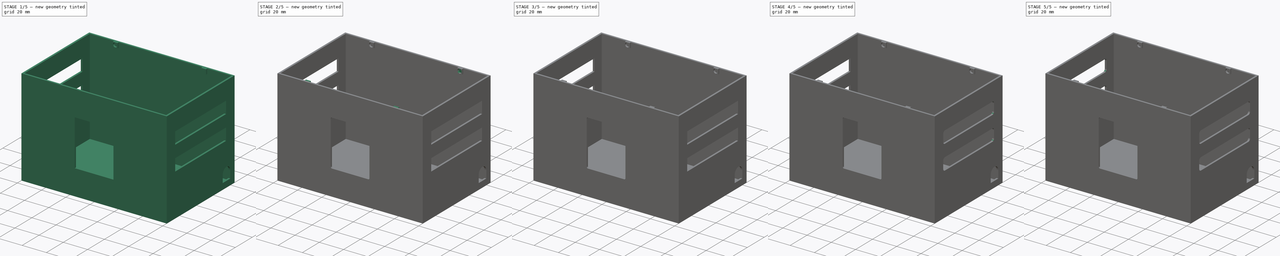
[diagram: build sequence overview — one tinted view per stage of 5, left to right]
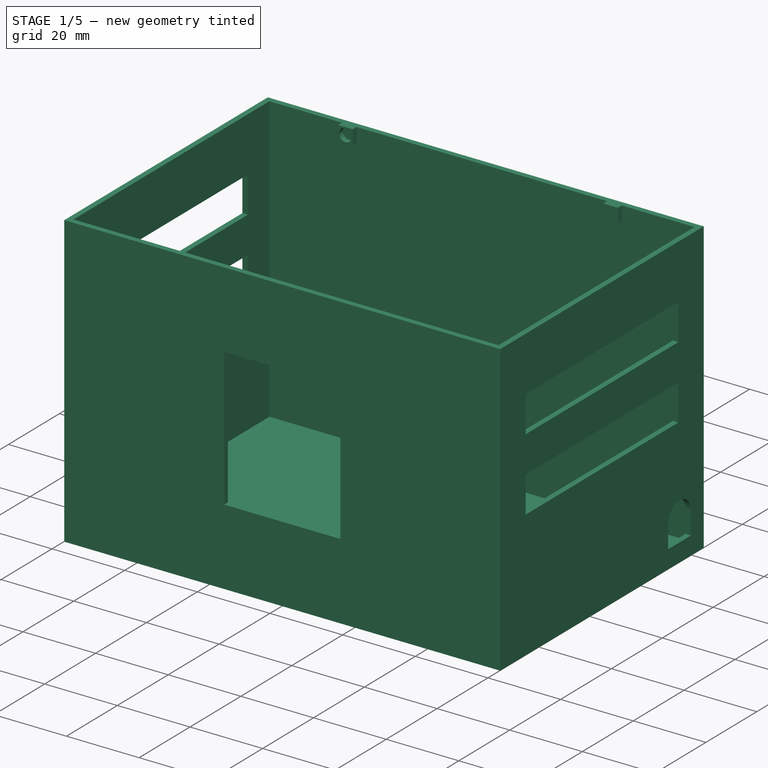
[diagram: stage 1 of 5 — iso view after this stage's code; geometry added in this stage tinted green]
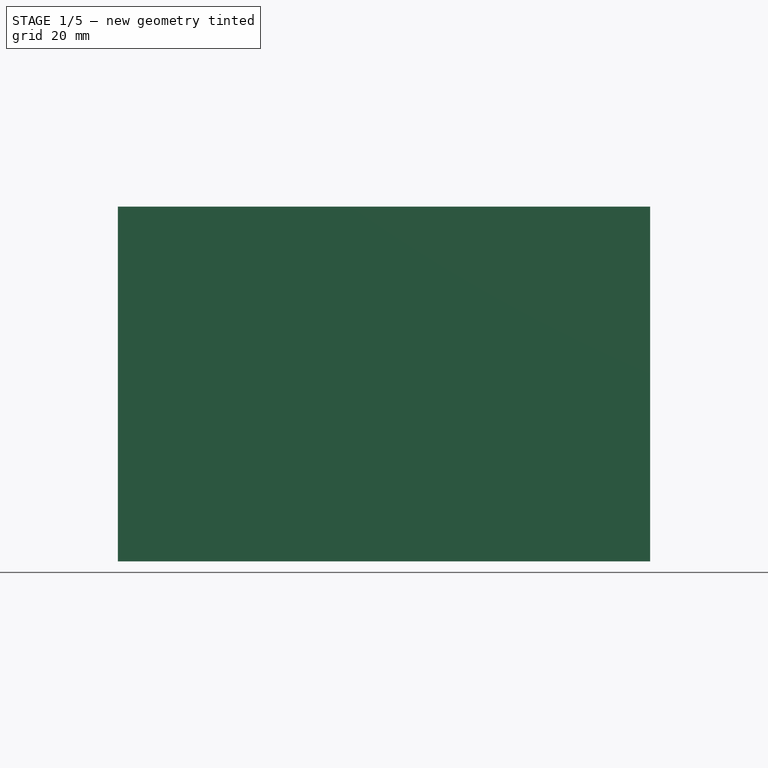
[diagram: stage 1 of 5 — front view after this stage's code; geometry added in this stage tinted green]
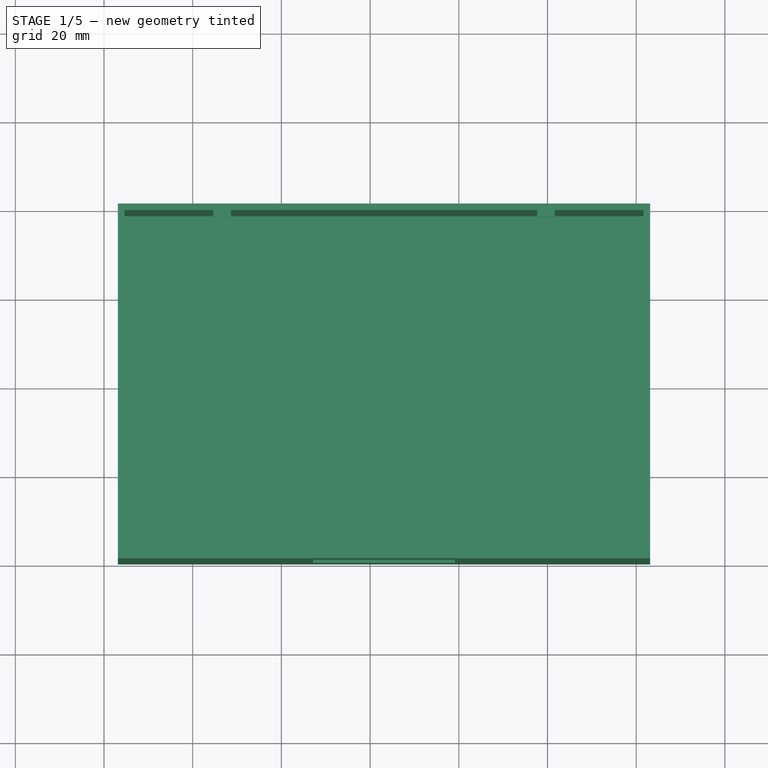
[diagram: stage 1 of 5 — top view after this stage's code; geometry added in this stage tinted green]
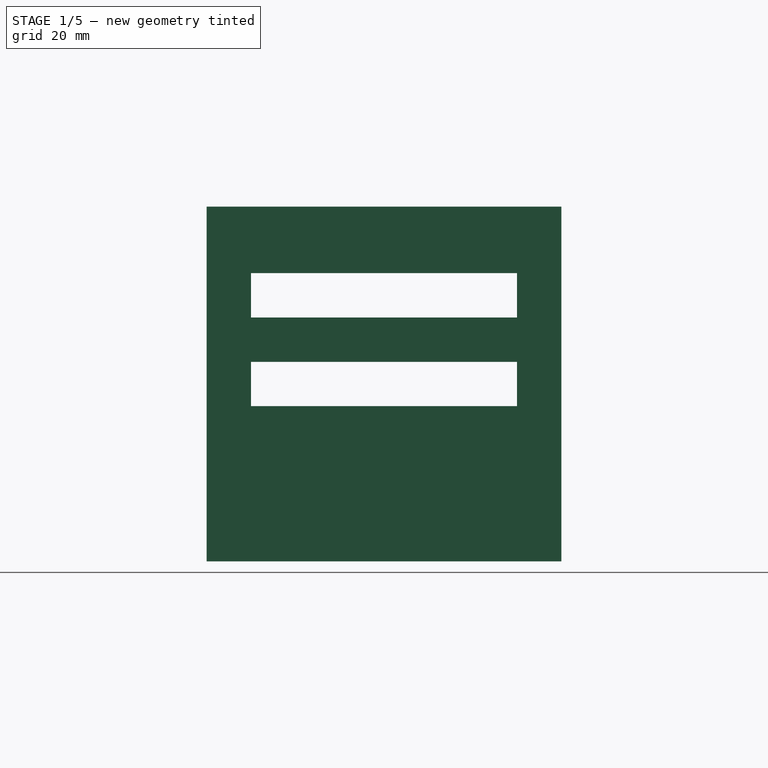
[diagram: stage 1 of 5 — right view after this stage's code; geometry added in this stage tinted green]
FCSTD DOCUMENT  (FreeCAD 0.19R24267 +99 (Git))
Label: box
License: All rights reserved
LicenseURL: http://en.wikipedia.org/wiki/All_rights_reserved
objects: PartDesign::Fillet×28, Sketcher::SketchObject×13, PartDesign::Pocket×9, PartDesign::Pad×4, PartDesign::Body×1
note: 96 computed .brp shape members not serialized (recipe doc carries the construction recipe); baked Part::Feature solids carry a one-line shape summary decoded from their .brp

FEATURE [Sketcher::SketchObject] Sketch
  FullyConstrained = false
  MapMode = 5
  Support = -> [XY_Plane]
  sketch-geometry (4):
    g0: LineSegment StartX=-56.8669 StartY=40.3681 StartZ=0 EndX=63.1331 EndY=40.3681 EndZ=0
    g1: LineSegment StartX=63.1331 StartY=40.3681 StartZ=0 EndX=63.1331 EndY=-39.6319 EndZ=0
    g2: LineSegment StartX=63.1331 StartY=-39.6319 StartZ=0 EndX=-56.8669 EndY=-39.6319 EndZ=0
    g3: LineSegment StartX=-56.8669 StartY=-39.6319 StartZ=0 EndX=-56.8669 EndY=40.3681 EndZ=0
  constraints (10):
    c: Coincident(g0,g1)
    c: Coincident(g1,g2)
    c: Coincident(g2,g3)
    c: Coincident(g3,g0)
    c: Horizontal(g0)
    c: Horizontal(g2)
    c: Vertical(g1)
    c: Vertical(g3)
    c: DistanceX(g2,g2) = 120
    c: DistanceY(g3,g3) = 80
FEATURE [PartDesign::Pad] Pad
  Direction = (1,1,1)
  Length = 80
  Length2 = 100
  Profile = -> Sketch
  Type = 0
FEATURE [Sketcher::SketchObject] Sketch001
  ExternalGeometry = -> [Pad]
  FullyConstrained = true
  MapMode = 5
  Placement = pos=(0,0,80) rot=(0,0,1;0rad)
  Support = -> [Pad]
  sketch-geometry (4):
    g0: LineSegment StartX=-55.3669 StartY=38.8681 StartZ=0 EndX=61.6331 EndY=38.8681 EndZ=0
    g1: LineSegment StartX=61.6331 StartY=38.8681 StartZ=0 EndX=61.6331 EndY=-38.1319 EndZ=0
    g2: LineSegment StartX=61.6331 StartY=-38.1319 StartZ=0 EndX=-55.3669 EndY=-38.1319 EndZ=0
    g3: LineSegment StartX=-55.3669 StartY=-38.1319 StartZ=0 EndX=-55.3669 EndY=38.8681 EndZ=0
  constraints (12):
    c: Coincident(g0,g1)
    c: Coincident(g1,g2)
    c: Coincident(g2,g3)
    c: Coincident(g3,g0)
    c: Horizontal(g0)
    c: Horizontal(g2)
    c: Vertical(g1)
    c: Vertical(g3)
    c: DistanceX(g0,g-3) = 1.5
    c: DistanceX(g-4,g2) = 1.5
    c: DistanceY(g0,g-3) = 1.5
    c: DistanceY(g-4,g1) = 1.5
FEATURE [PartDesign::Pocket] Pocket
  BaseFeature = -> Pad
  Length = 78.5
  Length2 = 100
  Profile = -> Sketch001
  Type = 0
FEATURE [Sketcher::SketchObject] Sketch002
  ExternalGeometry = -> [Pocket]
  FullyConstrained = true
  MapMode = 5
  Placement = pos=(0,-39.6319,0) rot=(1,0,0;1.5708rad)
  Support = -> [Pocket]
  sketch-geometry (4):
    g0: LineSegment StartX=-12.8669 StartY=59 StartZ=0 EndX=19.1331 EndY=59 EndZ=0
    g1: LineSegment StartX=19.1331 StartY=59 StartZ=0 EndX=19.1331 EndY=21 EndZ=0
    g2: LineSegment StartX=19.1331 StartY=21 StartZ=0 EndX=-12.8669 EndY=21 EndZ=0
    g3: LineSegment StartX=-12.8669 StartY=21 StartZ=0 EndX=-12.8669 EndY=59 EndZ=0
  constraints (12):
    c: Coincident(g0,g1)
    c: Coincident(g1,g2)
    c: Coincident(g2,g3)
    c: Coincident(g3,g0)
    c: Horizontal(g0)
    c: Horizontal(g2)
    c: Vertical(g1)
    c: Vertical(g3)
    c: DistanceY(g3,g3) = 38
    c: DistanceX(g2,g2) = 32
    c: DistanceX(g-4,g0) = 44
    c: DistanceY(g0,g-4) = 21
FEATURE [PartDesign::Pocket] Pocket001
  BaseFeature = -> Pocket
  Length = 2
  Length2 = 100
  Profile = -> Sketch002
  Type = 0
FEATURE [Sketcher::SketchObject] Sketch003
  ExternalGeometry = -> [Pocket001]
  FullyConstrained = true
  MapMode = 5
  Placement = pos=(63.1331,0,0) rot=(0.57735,0.57735,0.57735;2.0944rad)
  Support = -> [Pocket001]
  sketch-geometry (8):
    g0: LineSegment StartX=-29.6319 StartY=65 StartZ=0 EndX=30.3681 EndY=65 EndZ=0
    g1: LineSegment StartX=30.3681 StartY=65 StartZ=0 EndX=30.3681 EndY=55 EndZ=0
    g2: LineSegment StartX=30.3681 StartY=55 StartZ=0 EndX=-29.6319 EndY=55 EndZ=0
    g3: LineSegment StartX=-29.6319 StartY=55 StartZ=0 EndX=-29.6319 EndY=65 EndZ=0
    g4: LineSegment StartX=-29.6319 StartY=45 StartZ=0 EndX=30.3681 EndY=45 EndZ=0
    g5: LineSegment StartX=30.3681 StartY=45 StartZ=0 EndX=30.3681 EndY=35 EndZ=0
    g6: LineSegment StartX=30.3681 StartY=35 StartZ=0 EndX=-29.6319 EndY=35 EndZ=0
    g7: LineSegment StartX=-29.6319 StartY=35 StartZ=0 EndX=-29.6319 EndY=45 EndZ=0
  constraints (24):
    c: Coincident(g0,g1)
    c: Coincident(g1,g2)
    c: Coincident(g2,g3)
    c: Coincident(g3,g0)
    c: Horizontal(g0)
    c: Horizontal(g2)
    c: Vertical(g1)
    c: Vertical(g3)
    c: Coincident(g4,g5)
    c: Coincident(g5,g6)
    c: Coincident(g6,g7)
    c: Coincident(g7,g4)
    c: Horizontal(g4)
    c: Horizontal(g6)
    c: Vertical(g5)
    c: Vertical(g7)
    c: DistanceX(g0,g0) = 60
    c: DistanceX(g4,g4) = 60
    c: DistanceY(g1,g1) = 10
    c: DistanceY(g5,g5) = 10
    c: DistanceX(g-4,g0) = 10
    c: DistanceX(g-4,g4) = 10
    c: DistanceY(g0,g-4) = 15
    c: DistanceY(g4,g2) = 10
FEATURE [PartDesign::Pocket] Pocket002
  BaseFeature = -> Pocket001
  Length = 5
  Length2 = 100
  Profile = -> Sketch003
  Type = 0
FEATURE [Sketcher::SketchObject] Sketch004
  ExternalGeometry = -> [Pocket002]
  FullyConstrained = true
  MapMode = 5
  Placement = pos=(-56.8669,0,0) rot=(0.57735,-0.57735,-0.57735;2.0944rad)
  Support = -> [Pocket002]
  sketch-geometry (8):
    g0: LineSegment StartX=-30.3681 StartY=65 StartZ=0 EndX=29.6319 EndY=65 EndZ=0
    g1: LineSegment StartX=29.6319 StartY=65 StartZ=0 EndX=29.6319 EndY=55 EndZ=0
    g2: LineSegment StartX=29.6319 StartY=55 StartZ=0 EndX=-30.3681 EndY=55 EndZ=0
    g3: LineSegment StartX=-30.3681 StartY=55 StartZ=0 EndX=-30.3681 EndY=65 EndZ=0
    g4: LineSegment StartX=-30.3681 StartY=45 StartZ=0 EndX=29.6319 EndY=45 EndZ=0
    g5: LineSegment StartX=29.6319 StartY=45 StartZ=0 EndX=29.6319 EndY=35 EndZ=0
    g6: LineSegment StartX=29.6319 StartY=35 StartZ=0 EndX=-30.3681 EndY=35 EndZ=0
    g7: LineSegment StartX=-30.3681 StartY=35 StartZ=0 EndX=-30.3681 EndY=45 EndZ=0
  constraints (24):
    c: Coincident(g0,g1)
    c: Coincident(g1,g2)
    c: Coincident(g2,g3)
    c: Coincident(g3,g0)
    c: Horizontal(g0)
    c: Horizontal(g2)
    c: Vertical(g1)
    c: Vertical(g3)
    c: Coincident(g4,g5)
    c: Coincident(g5,g6)
    c: Coincident(g6,g7)
    c: Coincident(g7,g4)
    c: Horizontal(g4)
    c: Horizontal(g6)
    c: Vertical(g5)
    c: Vertical(g7)
    c: DistanceY(g1,g1) = 10
    c: DistanceY(g5,g5) = 10
    c: DistanceX(g0,g0) = 60
    c: DistanceX(g4,g4) = 60
    c: DistanceY(g0,g-4) = 15
    c: DistanceY(g4,g2) = 10
    c: DistanceX(g-4,g0) = 10
    c: DistanceX(g-4,g4) = 10
FEATURE [PartDesign::Pocket] Pocket003
  BaseFeature = -> Pocket002
  Length = 5
  Length2 = 100
  Profile = -> Sketch004
  Type = 0
FEATURE [Sketcher::SketchObject] Sketch005
  ExternalGeometry = -> [Pocket003]
  FullyConstrained = true
  MapMode = 5
  Placement = pos=(63.1331,0,0) rot=(0.57735,0.57735,0.57735;2.0944rad)
  Support = -> [Pocket003]
  sketch-geometry (4):
    g0: LineSegment StartX=26.3681 StartY=11 StartZ=0 EndX=26.3681 EndY=5 EndZ=0
    g1: LineSegment StartX=26.3681 StartY=5 StartZ=0 EndX=35.3681 EndY=5 EndZ=0
    g2: LineSegment StartX=35.3681 StartY=5 StartZ=0 EndX=35.3681 EndY=11 EndZ=0
    g3: ArcOfCircle CenterX=30.8681 CenterY=11 CenterZ=0 NormalX=0 NormalY=0 NormalZ=1 AngleXU=0 Radius=4.5 StartAngle=1.7e-15 EndAngle=3.14159
  constraints (12):
    c: Vertical(g0)
    c: Coincident(g1,g0)
    c: Coincident(g2,g1)
    c: Vertical(g2)
    c: Coincident(g3,g2)
    c: DistanceY(g0,g0) = 6
    c: DistanceY(g2,g2) = 6
    c: Perpendicular(g0,g1)
    c: DistanceX(g1,g1) = 9
    c: Tangent(g3,g0) = -1.5708
    c: DistanceX(g1,g-4) = 5
    c: DistanceY(g-4,g1) = 5
FEATURE [PartDesign::Pocket] Pocket004
  BaseFeature = -> Pocket003
  Length = 5
  Length2 = 100
  Profile = -> Sketch005
  Type = 0
FEATURE [Sketcher::SketchObject] Sketch006
  ExternalGeometry = -> [Pocket004]
  FullyConstrained = true
  MapMode = 5
  Placement = pos=(0,38.8681,0) rot=(1,0,0;1.5708rad)
  Support = -> [Pocket004]
  sketch-geometry (8):
    g0: LineSegment StartX=-35.3669 StartY=80 StartZ=0 EndX=-31.3669 EndY=80 EndZ=0
    g1: LineSegment StartX=-31.3669 StartY=80 StartZ=0 EndX=-31.3669 EndY=76 EndZ=0
    g2: LineSegment StartX=-31.3669 StartY=76 StartZ=0 EndX=-35.3669 EndY=76 EndZ=0
    g3: LineSegment StartX=-35.3669 StartY=76 StartZ=0 EndX=-35.3669 EndY=80 EndZ=0
    g4: LineSegment StartX=37.6331 StartY=80 StartZ=0 EndX=41.6331 EndY=80 EndZ=0
    g5: LineSegment StartX=41.6331 StartY=80 StartZ=0 EndX=41.6331 EndY=76 EndZ=0
    g6: LineSegment StartX=41.6331 StartY=76 StartZ=0 EndX=37.6331 EndY=76 EndZ=0
    g7: LineSegment StartX=37.6331 StartY=76 StartZ=0 EndX=37.6331 EndY=80 EndZ=0
  constraints (24):
    c: Coincident(g0,g1)
    c: Coincident(g1,g2)
    c: Coincident(g2,g3)
    c: Coincident(g3,g0)
    c: Horizontal(g0)
    c: Horizontal(g2)
    c: Vertical(g1)
    c: Vertical(g3)
    c: Coincident(g4,g5)
    c: Coincident(g5,g6)
    c: Coincident(g6,g7)
    c: Coincident(g7,g4)
    c: Horizontal(g4)
    c: Horizontal(g6)
    c: Vertical(g5)
    c: Vertical(g7)
    c: DistanceX(g2,g2) = 4
    c: DistanceY(g1,g1) = 4
    c: DistanceX(g6,g6) = 4
    c: DistanceY(g5,g5) = 4
    c: DistanceX(g-4,g0) = 20
    c: DistanceY(g0,g-4) = 0
    c: DistanceX(g4,g-4) = 20
    c: DistanceY(g4,g-4) = 0
FEATURE [PartDesign::Pad] Pad001
  BaseFeature = -> Pocket004
  Direction = (1,1,1)
  Length = 1.5
  Length2 = 100
  Profile = -> Sketch006
  Type = 0
FEATURE [Sketcher::SketchObject] Sketch007
  ExternalGeometry = -> [Pad001]
  FullyConstrained = true
  MapMode = 5
  Placement = pos=(0,37.3681,0) rot=(1,0,0;1.5708rad)
  Support = -> [Pad001]
  sketch-geometry (1):
    g0: Circle CenterX=-33.3669 CenterY=78 CenterZ=0 NormalX=0 NormalY=0 NormalZ=1 AngleXU=0 Radius=1.75
  constraints (3):
    c: Diameter(g0) = 3.5
    c: DistanceY(g0,g-3) = 2
    c: DistanceX(g-4,g0) = 2
FEATURE [PartDesign::Pocket] Pocket005
  BaseFeature = -> Pad001
  Length = 1.5
  Length2 = 100
  Profile = -> Sketch007
  Type = 0
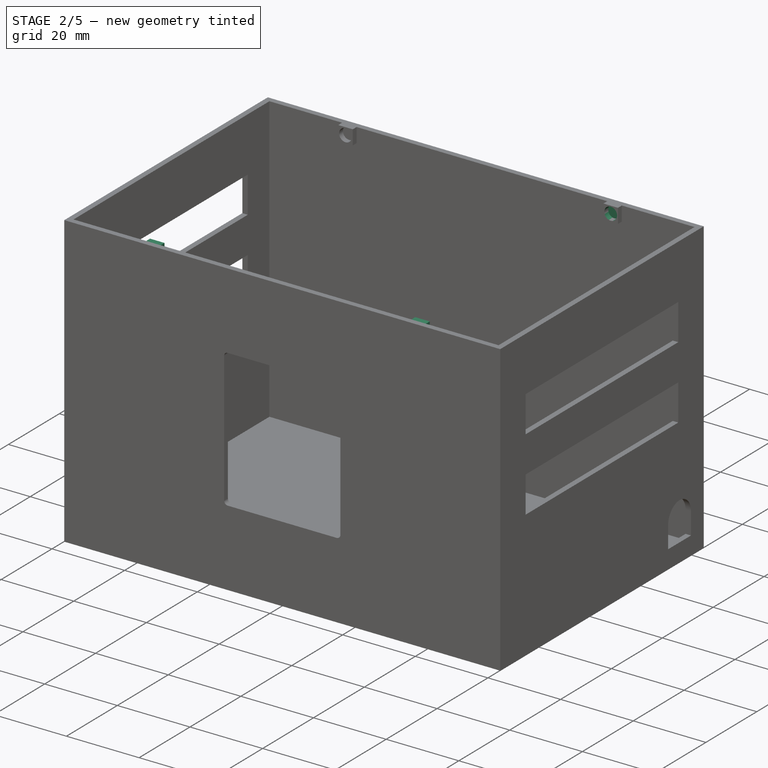
[diagram: stage 2 of 5 — iso view after this stage's code; geometry added in this stage tinted green]
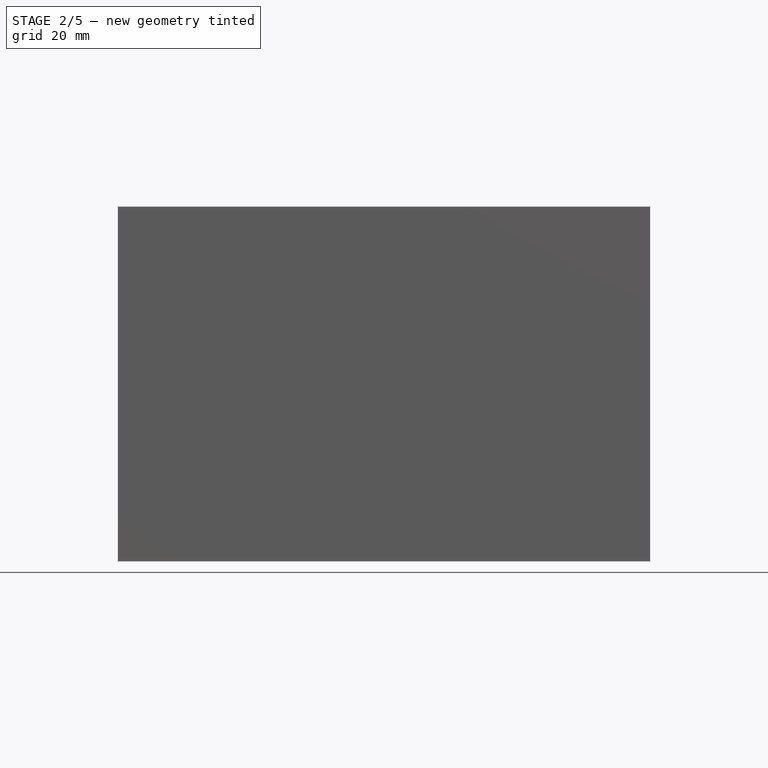
[diagram: stage 2 of 5 — front view after this stage's code; geometry added in this stage tinted green]
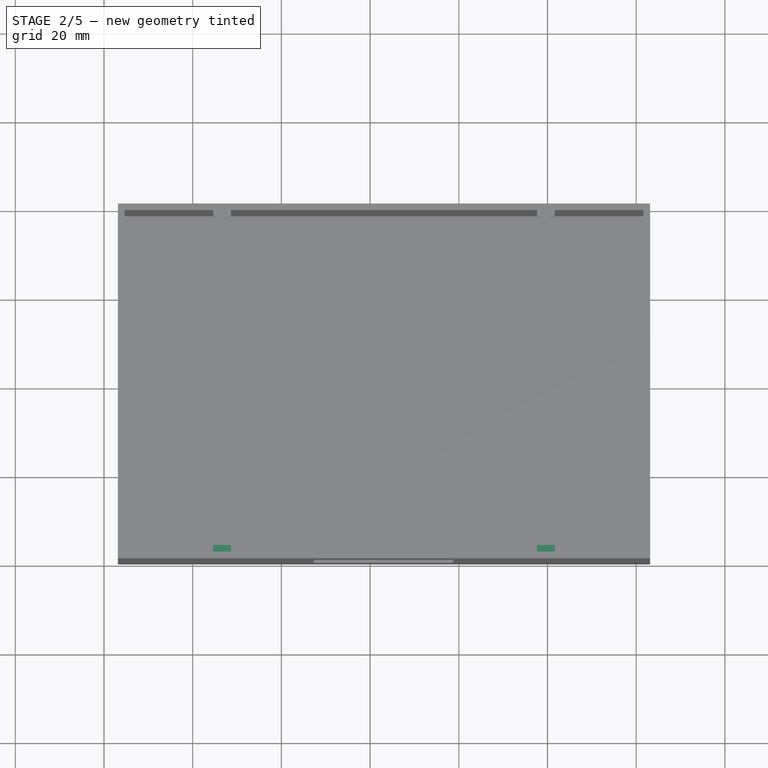
[diagram: stage 2 of 5 — top view after this stage's code; geometry added in this stage tinted green]
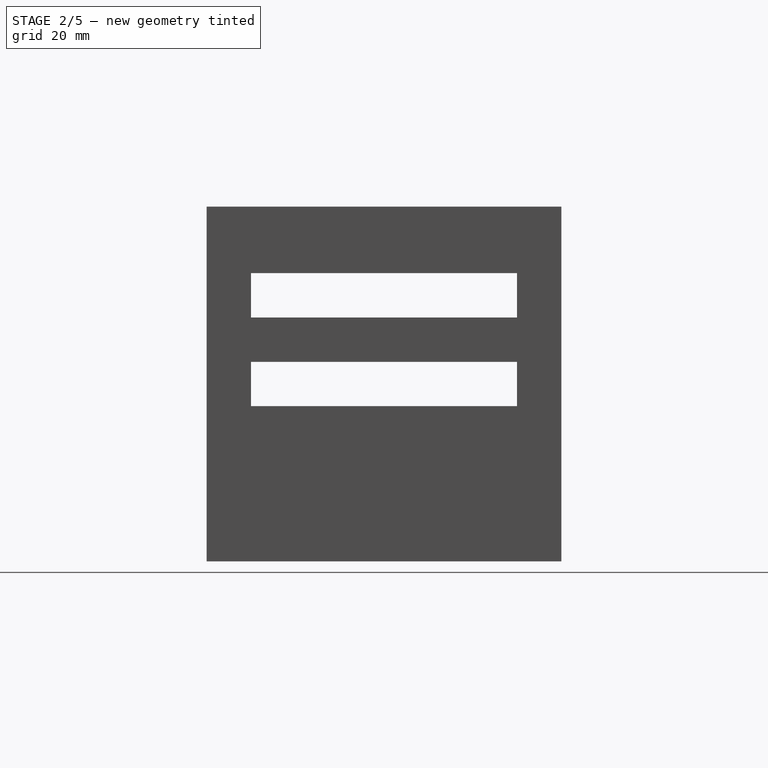
[diagram: stage 2 of 5 — right view after this stage's code; geometry added in this stage tinted green]
FEATURE [Sketcher::SketchObject] Sketch008
  ExternalGeometry = -> [Pocket005]
  FullyConstrained = true
  MapMode = 5
  Placement = pos=(0,37.3681,0) rot=(1,0,0;1.5708rad)
  Support = -> [Pocket005]
  sketch-geometry (1):
    g0: Circle CenterX=39.6331 CenterY=78 CenterZ=0 NormalX=0 NormalY=0 NormalZ=1 AngleXU=0 Radius=1.75
  constraints (3):
    c: Diameter(g0) = 3.5
    c: DistanceY(g0,g-3) = 2
    c: DistanceX(g-3,g0) = 2
FEATURE [PartDesign::Pocket] Pocket006
  BaseFeature = -> Pocket005
  Length = 1.5
  Length2 = 100
  Profile = -> Sketch008
  Type = 0
FEATURE [Sketcher::SketchObject] Sketch009
  ExternalGeometry = -> [Pocket006]
  FullyConstrained = true
  MapMode = 5
  Placement = pos=(0,-38.1319,0) rot=(0,0.707107,0.707107;3.14159rad)
  Support = -> [Pocket006]
  sketch-geometry (8):
    g0: LineSegment StartX=-41.6331 StartY=80 StartZ=0 EndX=-37.6331 EndY=80 EndZ=0
    g1: LineSegment StartX=-37.6331 StartY=80 StartZ=0 EndX=-37.6331 EndY=76 EndZ=0
    g2: LineSegment StartX=-37.6331 StartY=76 StartZ=0 EndX=-41.6331 EndY=76 EndZ=0
    g3: LineSegment StartX=-41.6331 StartY=76 StartZ=0 EndX=-41.6331 EndY=80 EndZ=0
    g4: LineSegment StartX=31.3669 StartY=80 StartZ=0 EndX=35.3669 EndY=80 EndZ=0
    g5: LineSegment StartX=35.3669 StartY=80 StartZ=0 EndX=35.3669 EndY=76 EndZ=0
    g6: LineSegment StartX=35.3669 StartY=76 StartZ=0 EndX=31.3669 EndY=76 EndZ=0
    g7: LineSegment StartX=31.3669 StartY=76 StartZ=0 EndX=31.3669 EndY=80 EndZ=0
  constraints (24):
    c: Coincident(g0,g1)
    c: Coincident(g1,g2)
    c: Coincident(g2,g3)
    c: Coincident(g3,g0)
    c: Horizontal(g0)
    c: Horizontal(g2)
    c: Vertical(g1)
    c: Vertical(g3)
    c: Coincident(g4,g5)
    c: Coincident(g5,g6)
    c: Coincident(g6,g7)
    c: Coincident(g7,g4)
    c: Horizontal(g4)
    c: Horizontal(g6)
    c: Vertical(g5)
    c: Vertical(g7)
    c: DistanceX(g2,g2) = 4
    c: DistanceX(g6,g6) = 4
    c: DistanceY(g1,g1) = 4
    c: DistanceY(g7,g7) = 4
    c: DistanceX(g-3,g0) = 20
    c: DistanceY(g0,g-3) = 0
    c: DistanceX(g4,g-3) = 20
    c: DistanceY(g4,g-3) = 0
FEATURE [PartDesign::Pad] Pad002
  BaseFeature = -> Pocket006
  Direction = (1,1,1)
  Length = 1.5
  Length2 = 100
  Profile = -> Sketch009
  Type = 0
FEATURE [Sketcher::SketchObject] Sketch010
  ExternalGeometry = -> [Pad002]
  FullyConstrained = true
  MapMode = 5
  Placement = pos=(0,-36.6319,0) rot=(0,0.707107,0.707107;3.14159rad)
  Support = -> [Pad002]
  sketch-geometry (1):
    g0: Circle CenterX=-39.6331 CenterY=78 CenterZ=0 NormalX=0 NormalY=0 NormalZ=1 AngleXU=0 Radius=1.75
  constraints (3):
    c: Diameter(g0) = 3.5
    c: DistanceX(g-3,g0) = 2
    c: DistanceY(g0,g-3) = 2
FEATURE [PartDesign::Pocket] Pocket007
  BaseFeature = -> Pad002
  Length = 1.5
  Length2 = 100
  Profile = -> Sketch010
  Type = 0
FEATURE [Sketcher::SketchObject] Sketch011
  ExternalGeometry = -> [Pocket007]
  FullyConstrained = true
  MapMode = 5
  Placement = pos=(0,-36.6319,0) rot=(0,0.707107,0.707107;3.14159rad)
  Support = -> [Pocket007]
  sketch-geometry (1):
    g0: Circle CenterX=33.3669 CenterY=78 CenterZ=0 NormalX=0 NormalY=0 NormalZ=1 AngleXU=0 Radius=1.75
  constraints (3):
    c: Diameter(g0) = 3.5
    c: DistanceX(g-3,g0) = 2
    c: DistanceY(g0,g-3) = 2
FEATURE [PartDesign::Pocket] Pocket008
  BaseFeature = -> Pocket007
  Length = 1.5
  Length2 = 100
  Profile = -> Sketch011
  Type = 0
FEATURE [PartDesign::Fillet] Fillet
  Base = -> Pocket008 [Edge126]
  BaseFeature = -> Pocket008
  Radius = 1
  SupportTransform = false
FEATURE [PartDesign::Fillet] Fillet001
  Base = -> Fillet [Edge17]
  BaseFeature = -> Fillet
  Radius = 1
  SupportTransform = false
FEATURE [PartDesign::Fillet] Fillet002
  Base = -> Fillet001 [Edge18]
  BaseFeature = -> Fillet001
  Radius = 1
  SupportTransform = false
FEATURE [PartDesign::Fillet] Fillet003
  Base = -> Fillet002 [Edge19]
  BaseFeature = -> Fillet002
  Radius = 1
  SupportTransform = false
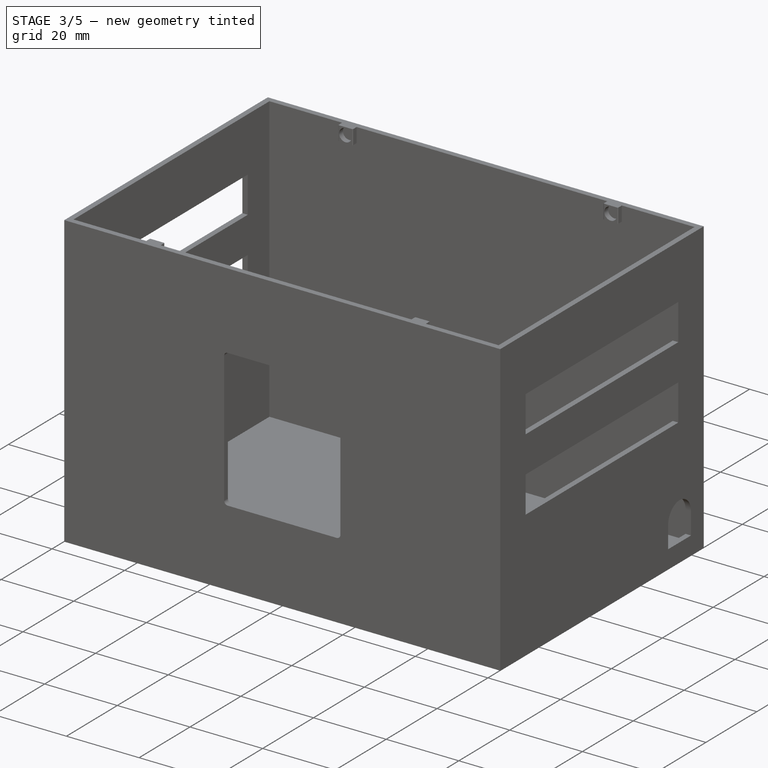
[diagram: stage 3 of 5 — iso view after this stage's code; geometry added in this stage tinted green]
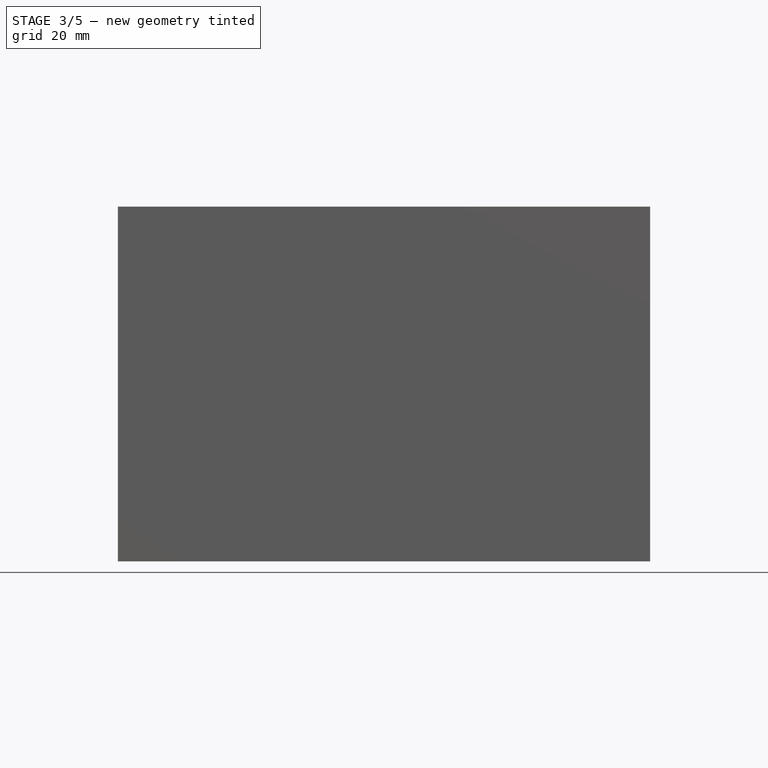
[diagram: stage 3 of 5 — front view after this stage's code; geometry added in this stage tinted green]
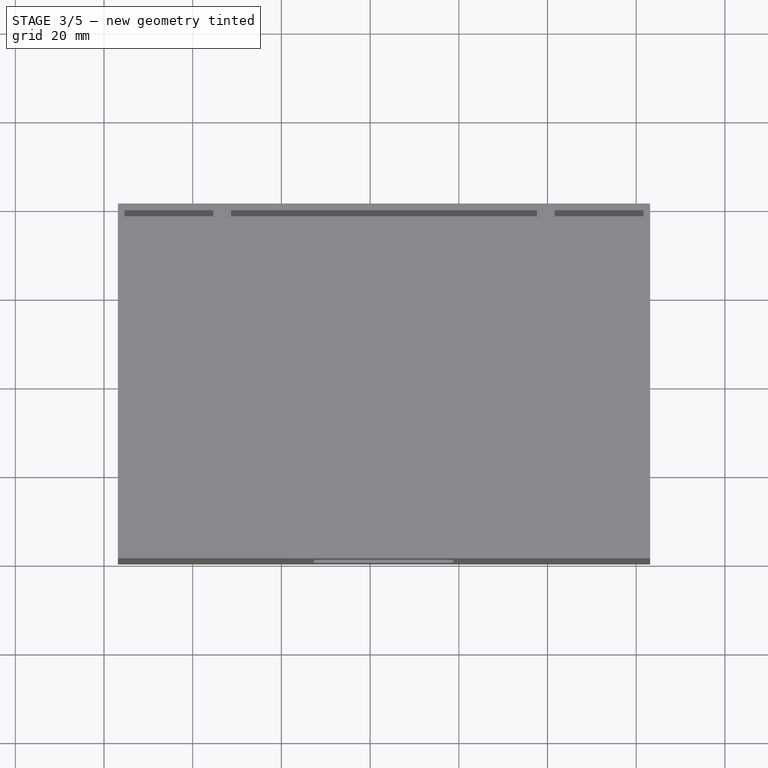
[diagram: stage 3 of 5 — top view after this stage's code; geometry added in this stage tinted green]
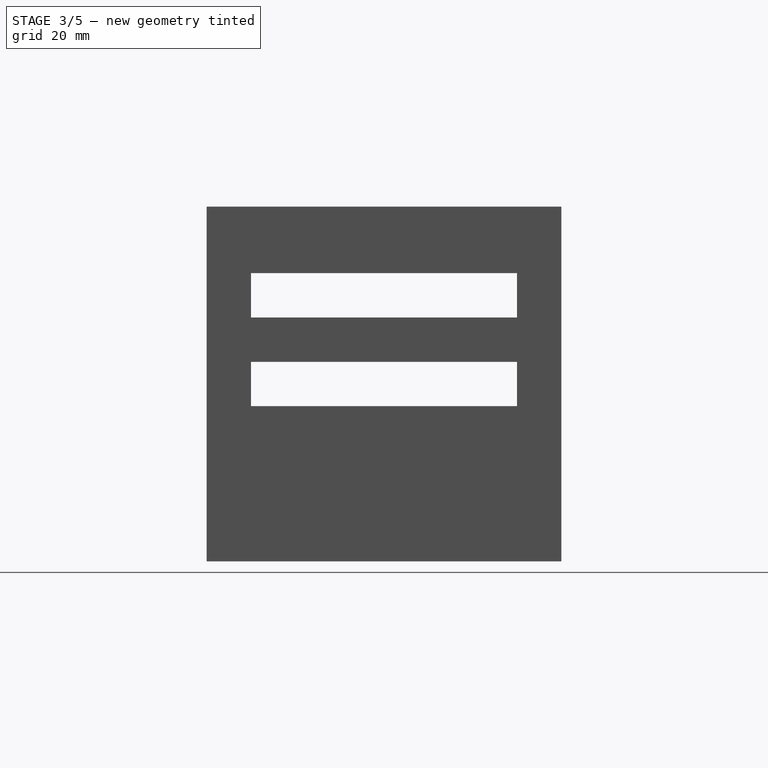
[diagram: stage 3 of 5 — right view after this stage's code; geometry added in this stage tinted green]
FEATURE [Sketcher::SketchObject] Sketch012
  ExternalGeometry = -> [Fillet003]
  FullyConstrained = true
  MapMode = 5
  Placement = pos=(0,-38.1319,0) rot=(0,0.707107,0.707107;3.14159rad)
  Support = -> [Fillet003]
  sketch-geometry (4):
    g0: LineSegment StartX=-20.6331 StartY=20 StartZ=0 EndX=14.3669 EndY=20 EndZ=0
    g1: LineSegment StartX=14.3669 StartY=20 StartZ=0 EndX=14.3669 EndY=19 EndZ=0
    g2: LineSegment StartX=14.3669 StartY=19 StartZ=0 EndX=-20.6331 EndY=19 EndZ=0
    g3: LineSegment StartX=-20.6331 StartY=19 StartZ=0 EndX=-20.6331 EndY=20 EndZ=0
  constraints (12):
    c: Coincident(g0,g1)
    c: Coincident(g1,g2)
    c: Coincident(g2,g3)
    c: Coincident(g3,g0)
    c: Horizontal(g0)
    c: Horizontal(g2)
    c: Vertical(g1)
    c: Vertical(g3)
    c: DistanceX(g2,g2) = 35
    c: DistanceY(g1,g1) = 1
    c: DistanceX(g-3,g0) = 42.5
    c: DistanceY(g0,g-4) = 1
FEATURE [PartDesign::Pad] Pad003
  BaseFeature = -> Fillet003
  Direction = (1,1,1)
  Length = 1
  Length2 = 100
  Profile = -> Sketch012
  Type = 0
FEATURE [PartDesign::Fillet] Fillet004
  Base = -> Pad003 [Edge151]
  BaseFeature = -> Pad003
  Radius = 0.2
  SupportTransform = false
FEATURE [PartDesign::Fillet] Fillet005
  Base = -> Fillet004 [Edge26]
  BaseFeature = -> Fillet004
  Radius = 0.2
  SupportTransform = false
FEATURE [PartDesign::Fillet] Fillet006
  Base = -> Fillet005 [Edge135]
  BaseFeature = -> Fillet005
  Radius = 0.2
  SupportTransform = false
FEATURE [PartDesign::Fillet] Fillet007
  Base = -> Fillet006 [Edge26]
  BaseFeature = -> Fillet006
  Radius = 0.2
  SupportTransform = false
FEATURE [PartDesign::Fillet] Fillet008
  Base = -> Fillet007 [Edge177]
  BaseFeature = -> Fillet007
  Radius = 0.2
  SupportTransform = false
FEATURE [PartDesign::Fillet] Fillet009
  Base = -> Fillet008 [Edge26]
  BaseFeature = -> Fillet008
  Radius = 0.2
  SupportTransform = false
FEATURE [PartDesign::Fillet] Fillet010
  Base = -> Fillet009 [Edge136]
  BaseFeature = -> Fillet009
  Radius = 0.2
  SupportTransform = false
FEATURE [PartDesign::Fillet] Fillet011
  Base = -> Fillet010 [Edge26]
  BaseFeature = -> Fillet010
  Radius = 0.2
  SupportTransform = false
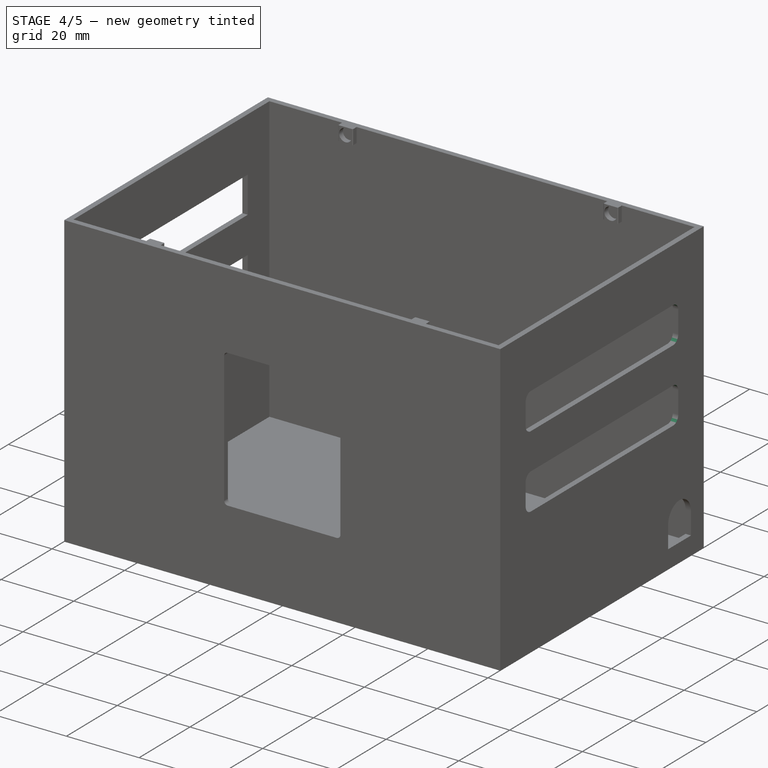
[diagram: stage 4 of 5 — iso view after this stage's code; geometry added in this stage tinted green]
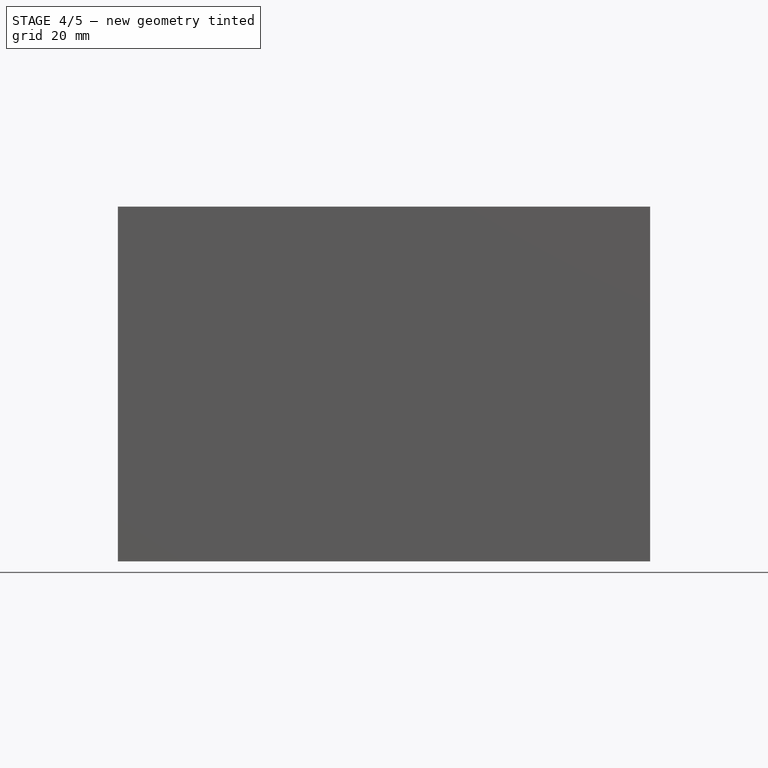
[diagram: stage 4 of 5 — front view after this stage's code; geometry added in this stage tinted green]
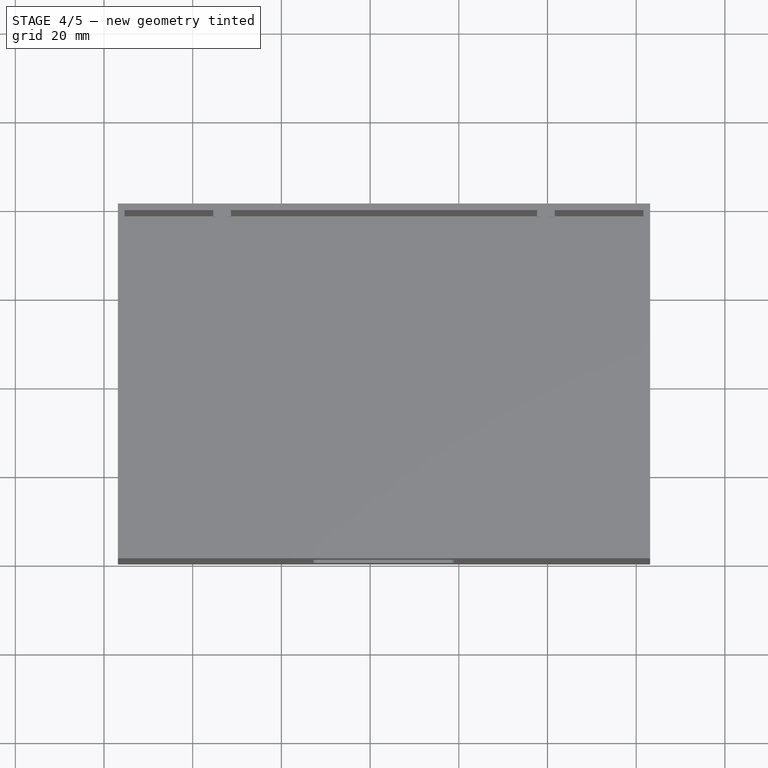
[diagram: stage 4 of 5 — top view after this stage's code; geometry added in this stage tinted green]
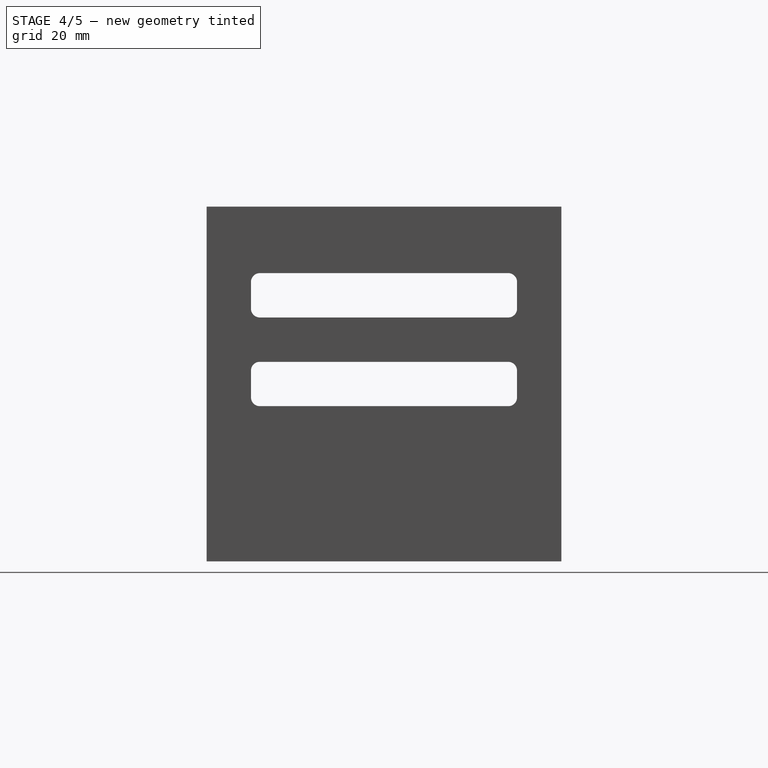
[diagram: stage 4 of 5 — right view after this stage's code; geometry added in this stage tinted green]
FEATURE [PartDesign::Fillet] Fillet012
  Base = -> Fillet011 [Edge155]
  BaseFeature = -> Fillet011
  Radius = 2
  SupportTransform = false
FEATURE [PartDesign::Fillet] Fillet013
  Base = -> Fillet012 [Edge25]
  BaseFeature = -> Fillet012
  Radius = 2
  SupportTransform = false
FEATURE [PartDesign::Fillet] Fillet014
  Base = -> Fillet013 [Edge63]
  BaseFeature = -> Fillet013
  Radius = 2
  SupportTransform = false
FEATURE [PartDesign::Fillet] Fillet015
  Base = -> Fillet014 [Edge27]
  BaseFeature = -> Fillet014
  Radius = 2
  SupportTransform = false
FEATURE [PartDesign::Fillet] Fillet016
  Base = -> Fillet015 [Edge30]
  BaseFeature = -> Fillet015
  Radius = 2
  SupportTransform = false
FEATURE [PartDesign::Fillet] Fillet017
  Base = -> Fillet016 [Edge43]
  BaseFeature = -> Fillet016
  Radius = 2
  SupportTransform = false
FEATURE [PartDesign::Fillet] Fillet018
  Base = -> Fillet017 [Edge44]
  BaseFeature = -> Fillet017
  Radius = 2
  SupportTransform = false
FEATURE [PartDesign::Fillet] Fillet019
  Base = -> Fillet018 [Edge47]
  BaseFeature = -> Fillet018
  Radius = 2
  SupportTransform = false
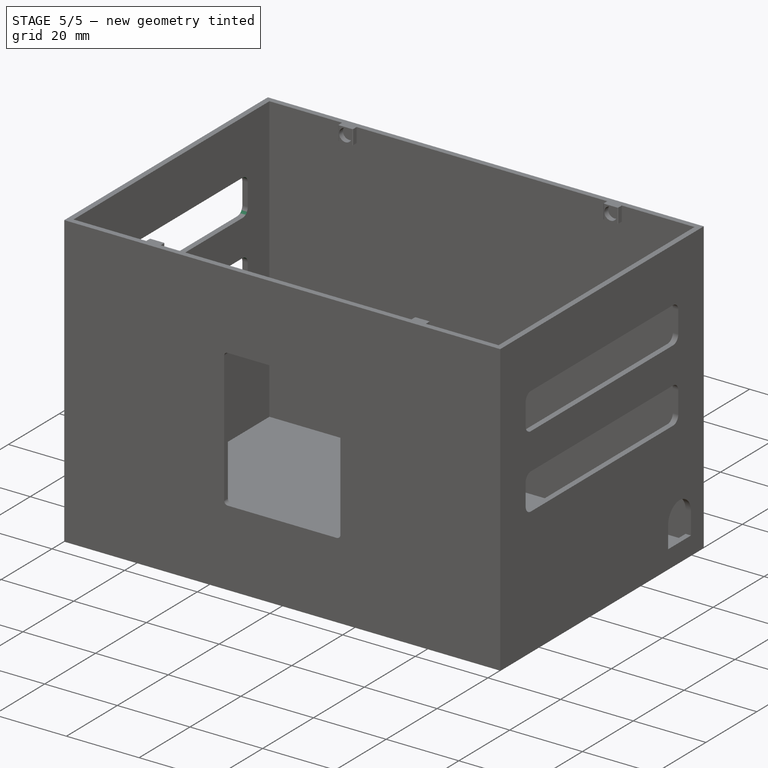
[diagram: stage 5 of 5 — iso view after this stage's code; geometry added in this stage tinted green]
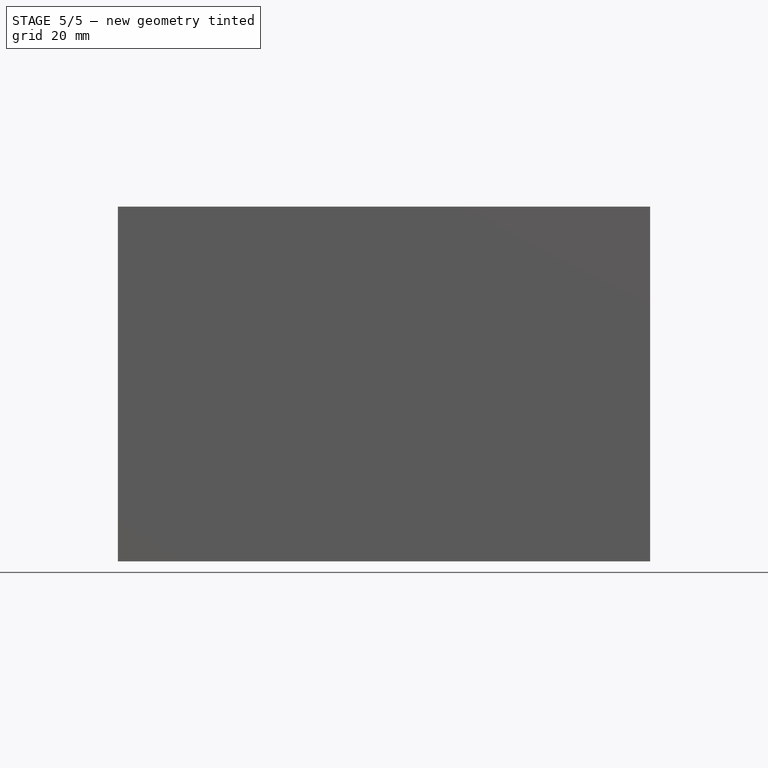
[diagram: stage 5 of 5 — front view after this stage's code; geometry added in this stage tinted green]
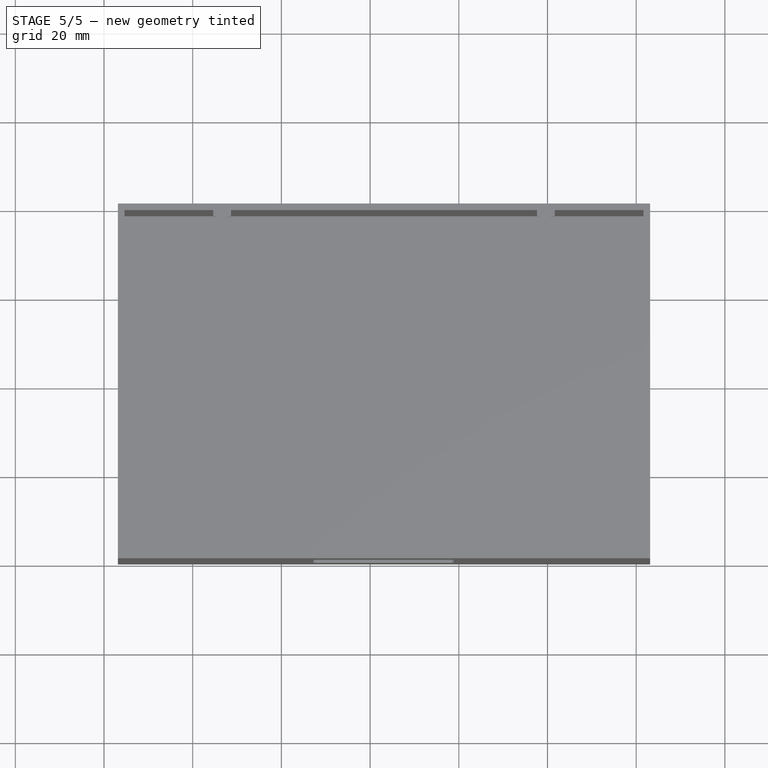
[diagram: stage 5 of 5 — top view after this stage's code; geometry added in this stage tinted green]
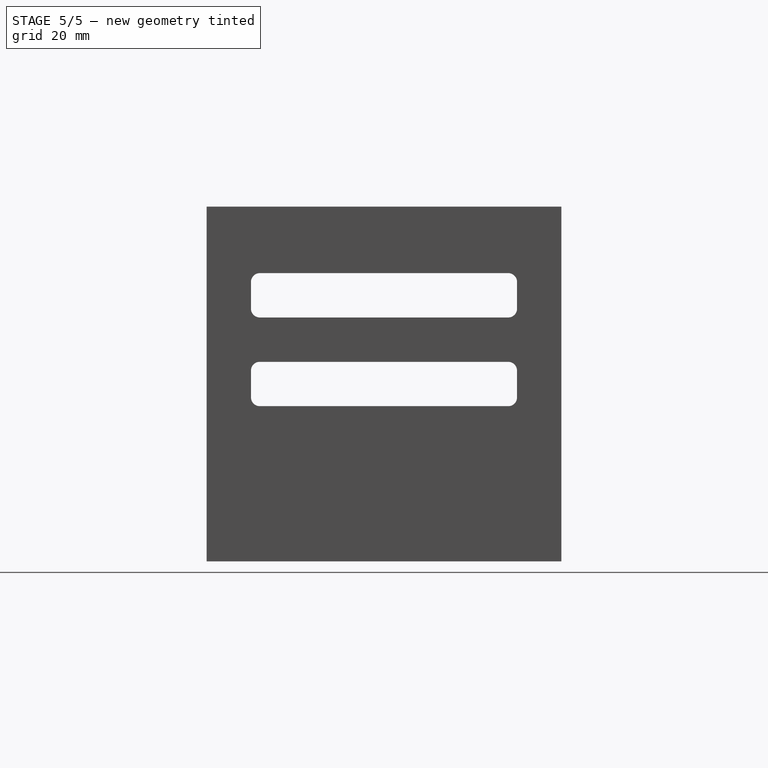
[diagram: stage 5 of 5 — right view after this stage's code; geometry added in this stage tinted green]
FEATURE [PartDesign::Fillet] Fillet020
  Base = -> Fillet019 [Edge171]
  BaseFeature = -> Fillet019
  Radius = 2
  SupportTransform = false
FEATURE [PartDesign::Fillet] Fillet021
  Base = -> Fillet020 [Edge56]
  BaseFeature = -> Fillet020
  Radius = 2
  SupportTransform = false
FEATURE [PartDesign::Fillet] Fillet022
  Base = -> Fillet021 [Edge22]
  BaseFeature = -> Fillet021
  Radius = 2
  SupportTransform = false
FEATURE [PartDesign::Fillet] Fillet023
  Base = -> Fillet022 [Edge35]
  BaseFeature = -> Fillet022
  Radius = 2
  SupportTransform = false
FEATURE [PartDesign::Fillet] Fillet024
  Base = -> Fillet023 [Edge26]
  BaseFeature = -> Fillet023
  Radius = 2
  SupportTransform = false
FEATURE [PartDesign::Fillet] Fillet025
  Base = -> Fillet024 [Edge41]
  BaseFeature = -> Fillet024
  Radius = 2
  SupportTransform = false
FEATURE [PartDesign::Fillet] Fillet026
  Base = -> Fillet025 [Edge40]
  BaseFeature = -> Fillet025
  Radius = 2
  SupportTransform = false
FEATURE [PartDesign::Fillet] Fillet027
  Base = -> Fillet026 [Edge43]
  BaseFeature = -> Fillet026
  Radius = 2
  SupportTransform = false
FEATURE [PartDesign::Body] Body
  Group = -> [Sketch,Pad,Sketch001,Pocket,Sketch002,Pocket001,Sketch003,Pocket002,Sketch004,Pocket003,Sketch005,Pocket004,Sketch006,Pad001,Sketch007,Pocket005,Sketch008,Pocket006,Sketch009,Pad002,Sketch010,Pocket007,Sketch011,Pocket008,Fillet,Fillet001,Fillet002,Fillet003,Sketch012,Pad003,Fillet004,Fillet005,Fillet006,Fillet007,Fillet008,Fillet009,Fillet010,Fillet011,Fillet012,Fillet013,Fillet014,Fillet015,+12 more]
  Origin = -> Origin
  Tip = -> Fillet027
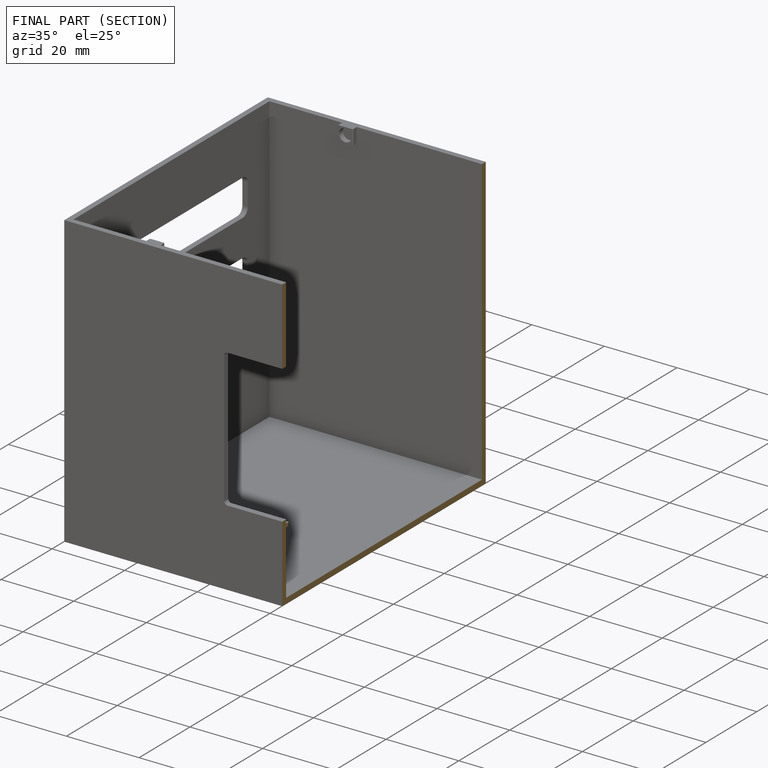
[diagram: finished part — half-section view (interior)]
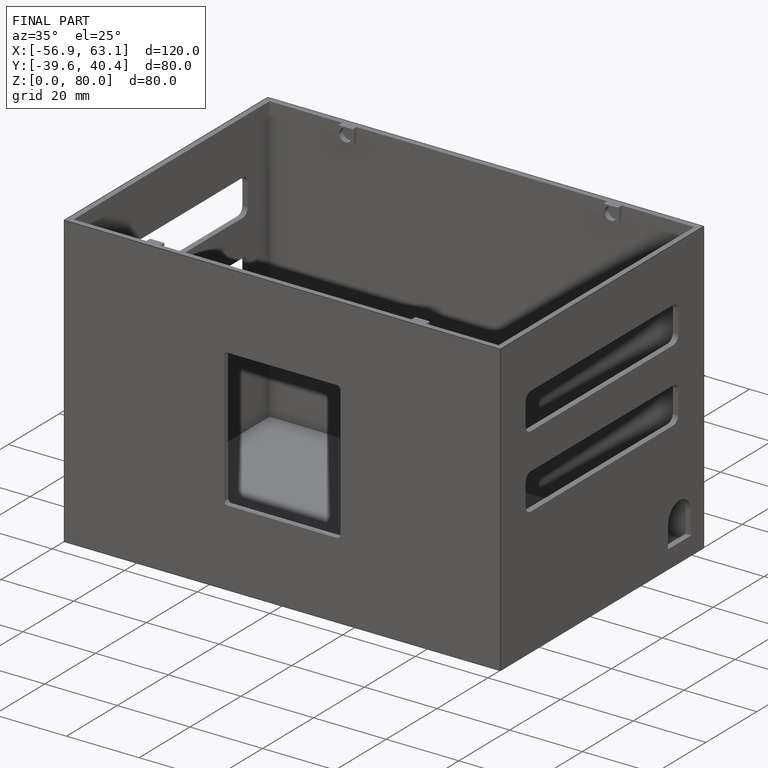
[diagram: finished part — iso view with bounding-box wireframe]
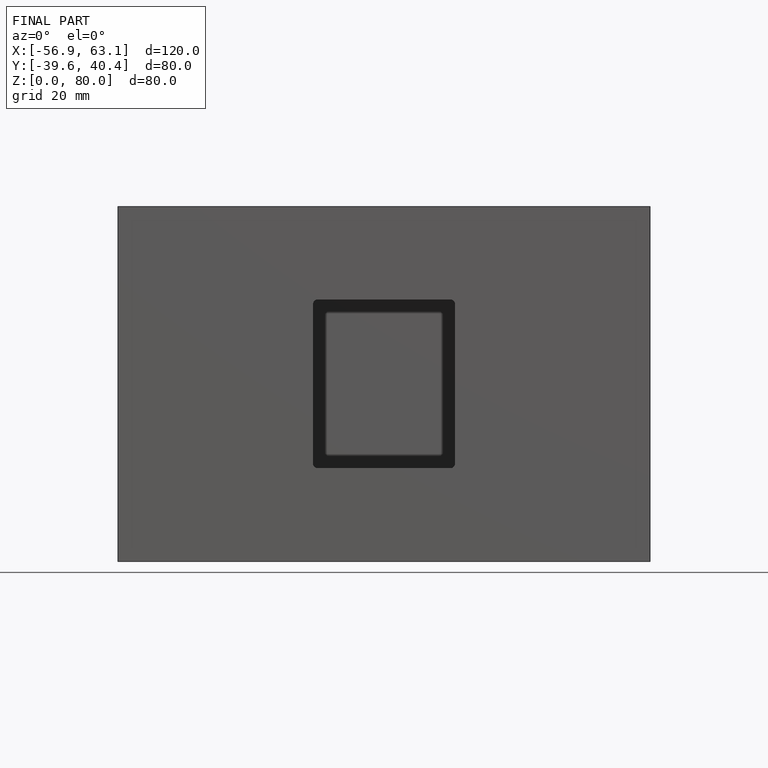
[diagram: finished part — front view with bounding-box wireframe]
